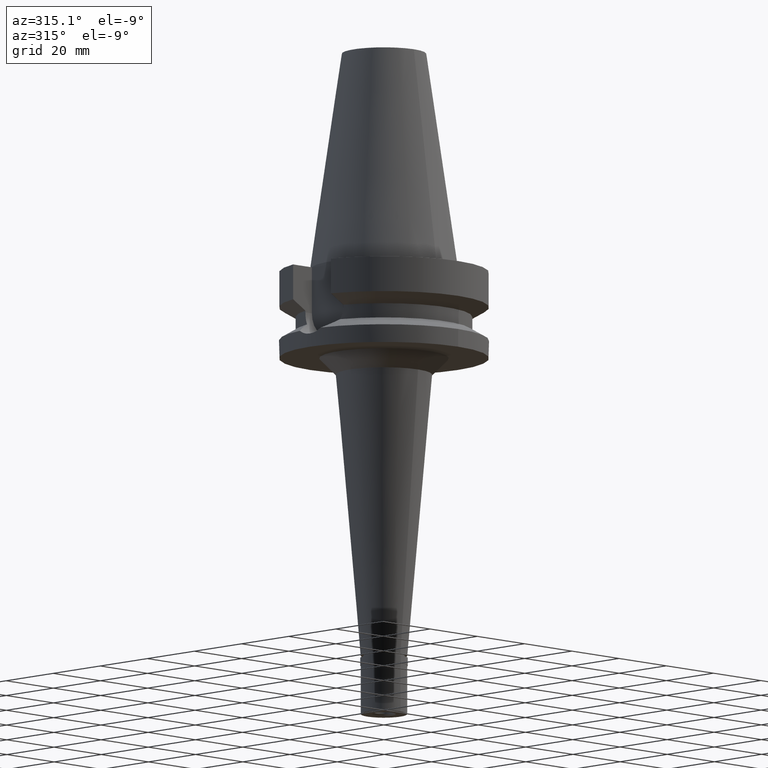
[diagram: clean part render]
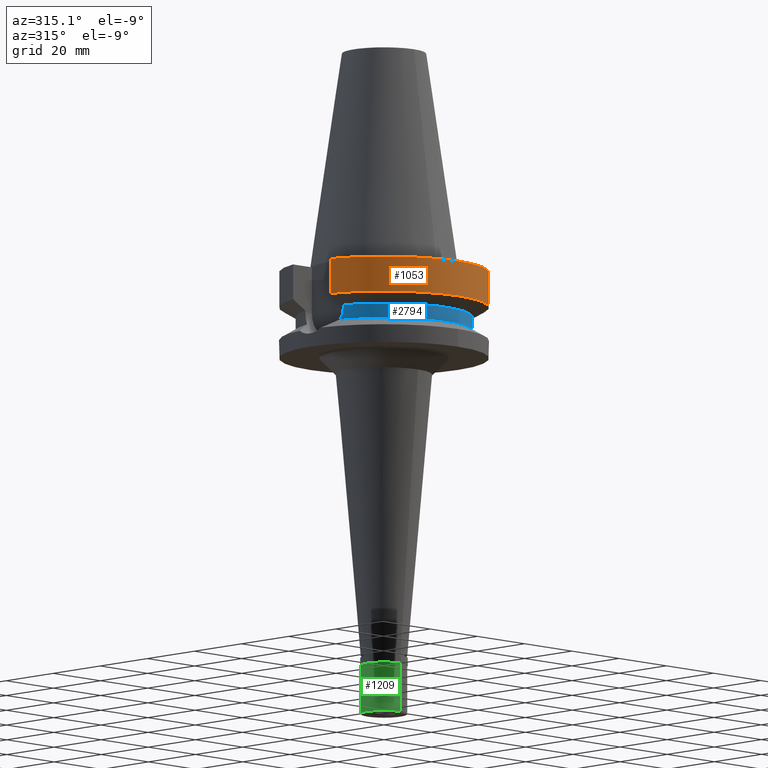
[diagram: same view with three faces highlighted in distinct colors, each labeled with its STEP entity id]
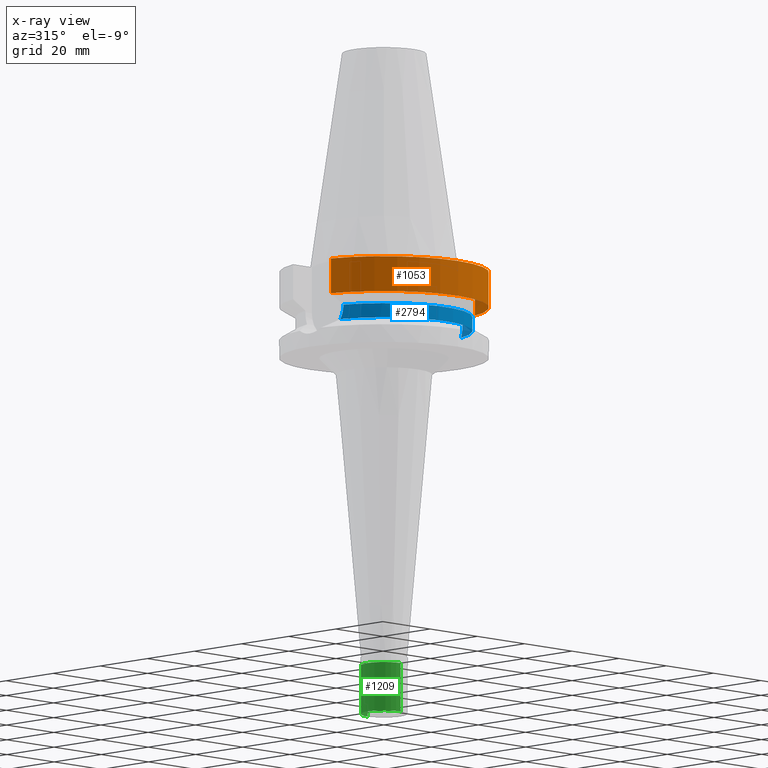
[diagram: x-ray of the same camera — body ghosted, the three highlighted faces saturated]
A machine part, auxiliary view with three faces highlighted in distinct colors.
The next image is the same camera in x-ray (body ghosted, the three faces saturated) — at least one of them is partly hidden behind the body in this view.
Their STEP definitions:

[orange] entity #1053 — the highlighted cylindrical surface (partial cylindrical patch) has radius 31.5 mm, axis along (0, 0, -1).
#32 = CARTESIAN_POINT ( 'NONE',  ( -30.45402291359999936, -8.049999278145000048, -11.56551215426000034 ) ) ;
#77 = AXIS2_PLACEMENT_3D ( 'NONE', #2067, #2307, #1387 ) ;
#214 = EDGE_CURVE ( 'NONE', #295, #789, #863, .T. ) ;
#295 = VERTEX_POINT ( 'NONE', #2447 ) ;
#300 = CARTESIAN_POINT ( 'NONE',  ( 30.45402272279000044, -8.049999999999000622, -11.56550565266999975 ) ) ;
#347 = FACE_OUTER_BOUND ( 'NONE', #1312, .T. ) ;
#514 = DIRECTION ( 'NONE',  ( -1.036721332146017624E-07, -3.922023857780068566E-07, -0.9999999999999177325 ) ) ;
#537 = AXIS2_PLACEMENT_3D ( 'NONE', #1752, #2857, #2655 ) ;
#754 = DIRECTION ( 'NONE',  ( 1.805963320780990496E-08, -6.832178659850962840E-08, 0.9999999999999974465 ) ) ;
#789 = VERTEX_POINT ( 'NONE', #300 ) ;
#863 = CIRCLE ( 'NONE', #1578, 31.50000000000000000 ) ;
#930 = EDGE_CURVE ( 'NONE', #295, #2353, #1880, .T. ) ;
#990 = ORIENTED_EDGE ( 'NONE', *, *, #930, .F. ) ;
#1053 = ADVANCED_FACE ( 'NONE', ( #347 ), #2876, .T. ) ;
#1125 = DIRECTION ( 'NONE',  ( 0.0000000000000000000, 0.0000000000000000000, 1.000000000000000000 ) ) ;
#1312 = EDGE_LOOP ( 'NONE', ( #990, #2818, #1600, #1492 ) ) ;
#1387 = DIRECTION ( 'NONE',  ( 0.0000000000000000000, -1.000000000000000000, 0.0000000000000000000 ) ) ;
#1476 = VECTOR ( 'NONE', #514, 1000.000000000000114 ) ;
#1492 = ORIENTED_EDGE ( 'NONE', *, *, #2511, .T. ) ;
#1509 = CARTESIAN_POINT ( 'NONE',  ( -30.45402272279000044, -8.050000000000000711, -1.000000000000000000 ) ) ;
#1578 = AXIS2_PLACEMENT_3D ( 'NONE', #1804, #1125, #2481 ) ;
#1600 = ORIENTED_EDGE ( 'NONE', *, *, #2251, .F. ) ;
#1644 = LINE ( 'NONE', #2776, #1476 ) ;
#1704 = VERTEX_POINT ( 'NONE', #2692 ) ;
#1752 = CARTESIAN_POINT ( 'NONE',  ( 0.0000000000000000000, 2.145826121465999692E-14, 75.21999999999999886 ) ) ;
#1804 = CARTESIAN_POINT ( 'NONE',  ( 0.0000000000000000000, 1.065333950388000029E-14, -11.56550565266999975 ) ) ;
#1819 = CIRCLE ( 'NONE', #77, 31.50000000000000000 ) ;
#1828 = VECTOR ( 'NONE', #754, 1000.000000000000114 ) ;
#1880 = LINE ( 'NONE', #32, #1828 ) ;
#2067 = CARTESIAN_POINT ( 'NONE',  ( 0.0000000000000000000, 2.145826121465999692E-14, -1.000000000000000000 ) ) ;
#2251 = EDGE_CURVE ( 'NONE', #1704, #789, #1644, .T. ) ;
#2307 = DIRECTION ( 'NONE',  ( 0.0000000000000000000, 0.0000000000000000000, -1.000000000000000000 ) ) ;
#2353 = VERTEX_POINT ( 'NONE', #1509 ) ;
#2447 = CARTESIAN_POINT ( 'NONE',  ( -30.45402291359999936, -8.049999278145000048, -11.56551215426000034 ) ) ;
#2481 = DIRECTION ( 'NONE',  ( 0.0000000000000000000, -1.000000000000000000, 0.0000000000000000000 ) ) ;
#2511 = EDGE_CURVE ( 'NONE', #1704, #2353, #1819, .T. ) ;
#2655 = DIRECTION ( 'NONE',  ( 0.0000000000000000000, -1.000000000000000000, 0.0000000000000000000 ) ) ;
#2692 = CARTESIAN_POINT ( 'NONE',  ( 30.45402272279000044, -8.050000000000000711, -1.000000000000000000 ) ) ;
#2776 = CARTESIAN_POINT ( 'NONE',  ( 30.45402272279000044, -8.050000000000000711, -1.000000000000000000 ) ) ;
#2818 = ORIENTED_EDGE ( 'NONE', *, *, #214, .T. ) ;
#2857 = DIRECTION ( 'NONE',  ( 0.0000000000000000000, 0.0000000000000000000, -1.000000000000000000 ) ) ;
#2876 = CYLINDRICAL_SURFACE ( 'NONE', #537, 31.50000000000000000 ) ;

[blue] entity #2794 — the highlighted cylindrical surface (partial cylindrical patch) has radius 26.5 mm, axis along (0, 0, -1).
#48 = DIRECTION ( 'NONE',  ( 0.0000000000000000000, 0.0000000000000000000, -1.000000000000000000 ) ) ;
#81 = CARTESIAN_POINT ( 'NONE',  ( 0.0000000000000000000, 1.065333950388000029E-14, -14.45225699861000024 ) ) ;
#117 = VERTEX_POINT ( 'NONE', #1479 ) ;
#166 = CARTESIAN_POINT ( 'NONE',  ( 25.27269700110156236, -7.971767412699277244, -16.08147680843515914 ) ) ;
#182 = CARTESIAN_POINT ( 'NONE',  ( 25.25396625246038340, -8.030896711159558166, -15.59378553532194012 ) ) ;
#191 = AXIS2_PLACEMENT_3D ( 'NONE', #606, #407, #211 ) ;
#204 = CARTESIAN_POINT ( 'NONE',  ( 25.24772216364000244, -8.050001586825000999, -14.45224487387000067 ) ) ;
#211 = DIRECTION ( 'NONE',  ( 0.0000000000000000000, -1.000000000000000000, 0.0000000000000000000 ) ) ;
#270 = CARTESIAN_POINT ( 'NONE',  ( 25.53175183775000079, -7.097862220092999941, -18.74774300138999905 ) ) ;
#318 = EDGE_CURVE ( 'NONE', #117, #1577, #1273, .T. ) ;
#379 = EDGE_CURVE ( 'NONE', #1874, #117, #2929, .T. ) ;
#397 = ORIENTED_EDGE ( 'NONE', *, *, #899, .T. ) ;
#401 = CARTESIAN_POINT ( 'NONE',  ( 25.28050147970205686, -7.946982733722315118, -16.24437200643345136 ) ) ;
#407 = DIRECTION ( 'NONE',  ( 0.0000000000000000000, 0.0000000000000000000, -1.000000000000000000 ) ) ;
#579 = AXIS2_PLACEMENT_3D ( 'NONE', #1793, #2935, #2483 ) ;
#606 = CARTESIAN_POINT ( 'NONE',  ( 0.0000000000000000000, 2.145826121465999692E-14, 75.21999999999999886 ) ) ;
#627 = DIRECTION ( 'NONE',  ( -2.936638260136918910E-06, 9.210369565768746321E-06, 0.9999999999532727113 ) ) ;
#629 = CIRCLE ( 'NONE', #2144, 26.50000000000000711 ) ;
#666 = VERTEX_POINT ( 'NONE', #1420 ) ;
#701 = CARTESIAN_POINT ( 'NONE',  ( -25.32549379169775960, -7.802110623111747856, -16.93240720981668801 ) ) ;
#790 = ORIENTED_EDGE ( 'NONE', *, *, #1087, .F. ) ;
#847 = CARTESIAN_POINT ( 'NONE',  ( -25.24772266958000344, -8.050000000000000711, -14.94999999999999929 ) ) ;
#866 = CARTESIAN_POINT ( 'NONE',  ( 25.53175183775000079, -7.097862220092999941, -18.74774300138999905 ) ) ;
#874 = CARTESIAN_POINT ( 'NONE',  ( -25.24772266958000344, -8.049999999999981171, -15.58995119535710394 ) ) ;
#881 = CARTESIAN_POINT ( 'NONE',  ( 25.24772266958000344, -8.050000000000000711, -15.27000344023661249 ) ) ;
#887 = FACE_OUTER_BOUND ( 'NONE', #1994, .T. ) ;
#888 = CARTESIAN_POINT ( 'NONE',  ( -25.24772266958000344, -8.050000000000000711, -14.94999999999999929 ) ) ;
#899 = EDGE_CURVE ( 'NONE', #1874, #2367, #629, .T. ) ;
#988 = DIRECTION ( 'NONE',  ( 0.9527442516822307583, -0.3037735849057093818, 0.0000000000000000000 ) ) ;
#1060 = CARTESIAN_POINT ( 'NONE',  ( -25.24772413117000269, -8.049995415925998543, -14.45229202691999859 ) ) ;
#1084 = CARTESIAN_POINT ( 'NONE',  ( 25.32122245610152333, -7.815962707354765726, -16.87706809355932691 ) ) ;
#1087 = EDGE_CURVE ( 'NONE', #666, #2438, #2550, .T. ) ;
#1094 = CARTESIAN_POINT ( 'NONE',  ( -25.37572073963947261, -7.637749019364103553, -17.49807125654118067 ) ) ;
#1128 = CARTESIAN_POINT ( 'NONE',  ( -25.53175183775000079, -7.097862220092999941, -18.74774300138999905 ) ) ;
#1273 = B_SPLINE_CURVE_WITH_KNOTS ( 'NONE', 3,
 ( #2239, #881, #182, #166, #401, #2460, #1551, #1364, #2226, #1565, #1084, #1349, #1787, #866 ),
 .UNSPECIFIED., .F., .F.,
 ( 4, 2, 2, 1, 1, 2, 2, 4 ),
 ( 0.0000000000000000000, 0.2500000000000002220, 0.3750000000000002776, 0.4375000000000002776, 0.4687500000000003331, 0.4843750000000004441, 0.5000000000000004441, 1.000000000000000000 ),
 .UNSPECIFIED. ) ;
#1349 = CARTESIAN_POINT ( 'NONE',  ( 25.36818832152585657, -7.663695285298394388, -17.48840541843396679 ) ) ;
#1358 = CARTESIAN_POINT ( 'NONE',  ( -25.32418399504418360, -7.806358676375241501, -16.91563029433266152 ) ) ;
#1361 = CARTESIAN_POINT ( 'NONE',  ( 25.24772266958000344, -8.050000000000000711, -14.45225699861000024 ) ) ;
#1364 = CARTESIAN_POINT ( 'NONE',  ( 25.31206084004276846, -7.845614529398909021, -16.75329855851902749 ) ) ;
#1383 = CARTESIAN_POINT ( 'NONE',  ( -25.32843481438663247, -7.792567015959785515, -16.96959595527966513 ) ) ;
#1420 = CARTESIAN_POINT ( 'NONE',  ( -25.53175183775000079, -7.097862220092999941, -18.74774300138999905 ) ) ;
#1479 = CARTESIAN_POINT ( 'NONE',  ( 25.24772266958000344, -8.050000000000000711, -14.94999999999999929 ) ) ;
#1551 = CARTESIAN_POINT ( 'NONE',  ( 25.30215890781841281, -7.877570599496804604, -16.61088255778438949 ) ) ;
#1555 = ORIENTED_EDGE ( 'NONE', *, *, #1692, .T. ) ;
#1565 = CARTESIAN_POINT ( 'NONE',  ( 25.31954826170011330, -7.821386849067300417, -16.85495274079918104 ) ) ;
#1577 = VERTEX_POINT ( 'NONE', #270 ) ;
#1617 = CARTESIAN_POINT ( 'NONE',  ( -25.39163789193598930, -7.584844707919025097, -17.65187641390370388 ) ) ;
#1668 = ORIENTED_EDGE ( 'NONE', *, *, #2368, .F. ) ;
#1692 = EDGE_CURVE ( 'NONE', #666, #1577, #2327, .T. ) ;
#1767 = ORIENTED_EDGE ( 'NONE', *, *, #318, .F. ) ;
#1775 = VECTOR ( 'NONE', #2446, 999.9999999999998863 ) ;
#1784 = CARTESIAN_POINT ( 'NONE',  ( -25.24772266958000344, -8.050000000000000711, -14.94999999999999929 ) ) ;
#1787 = CARTESIAN_POINT ( 'NONE',  ( 25.43789037939429676, -7.435491690445002355, -18.11672414067734138 ) ) ;
#1793 = CARTESIAN_POINT ( 'NONE',  ( 0.0000000000000000000, 0.0000000000000000000, -18.74774300138999905 ) ) ;
#1796 = CARTESIAN_POINT ( 'NONE',  ( -25.34387143298875245, -7.742373311419552095, -17.15653003779071284 ) ) ;
#1874 = VERTEX_POINT ( 'NONE', #1361 ) ;
#1903 = VECTOR ( 'NONE', #627, 999.9999999999998863 ) ;
#1994 = EDGE_LOOP ( 'NONE', ( #790, #1555, #1767, #2119, #397, #1668 ) ) ;
#2009 = CARTESIAN_POINT ( 'NONE',  ( -25.33291713924164767, -7.778013934258678042, -17.02547645187124559 ) ) ;
#2119 = ORIENTED_EDGE ( 'NONE', *, *, #379, .F. ) ;
#2144 = AXIS2_PLACEMENT_3D ( 'NONE', #81, #48, #988 ) ;
#2226 = CARTESIAN_POINT ( 'NONE',  ( 25.31652402624243337, -7.831177078178453321, -16.81429685341515778 ) ) ;
#2239 = CARTESIAN_POINT ( 'NONE',  ( 25.24772266958000344, -8.050000000000000711, -14.94999999999999929 ) ) ;
#2327 = CIRCLE ( 'NONE', #579, 26.49999999999998224 ) ;
#2367 = VERTEX_POINT ( 'NONE', #1060 ) ;
#2368 = EDGE_CURVE ( 'NONE', #2438, #2367, #2894, .T. ) ;
#2420 = CYLINDRICAL_SURFACE ( 'NONE', #191, 26.50000000000000000 ) ;
#2438 = VERTEX_POINT ( 'NONE', #1784 ) ;
#2446 = DIRECTION ( 'NONE',  ( 1.016451457034001931E-06, 3.187962647734004381E-06, -0.9999999999944019224 ) ) ;
#2460 = CARTESIAN_POINT ( 'NONE',  ( 25.29454954118293841, -7.902007388337085381, -16.48871296866759195 ) ) ;
#2483 = DIRECTION ( 'NONE',  ( -0.9634623335000935818, -0.2678438573619981722, 0.0000000000000000000 ) ) ;
#2550 = B_SPLINE_CURVE_WITH_KNOTS ( 'NONE', 3,
 ( #1128, #2967, #2937, #1617, #1094, #2750, #1796, #2009, #1383, #701, #1358, #2922, #874, #888 ),
 .UNSPECIFIED., .F., .F.,
 ( 4, 2, 2, 1, 1, 2, 2, 4 ),
 ( 0.0000000000000000000, 0.2499999999999948375, 0.3749999999999909517, 0.4374999999999888978, 0.4687499999999878431, 0.4843749999999886757, 0.4999999999999895084, 1.000000000000000000 ),
 .UNSPECIFIED. ) ;
#2750 = CARTESIAN_POINT ( 'NONE',  ( -25.35411031748981614, -7.708870715569698717, -17.26994754109524877 ) ) ;
#2794 = ADVANCED_FACE ( 'NONE', ( #887 ), #2420, .T. ) ;
#2894 = LINE ( 'NONE', #847, #1903 ) ;
#2922 = CARTESIAN_POINT ( 'NONE',  ( -25.27268963299686888, -7.973299854736771941, -16.24527810189547594 ) ) ;
#2929 = LINE ( 'NONE', #204, #1775 ) ;
#2935 = DIRECTION ( 'NONE',  ( 0.0000000000000000000, 0.0000000000000000000, 1.000000000000000000 ) ) ;
#2937 = CARTESIAN_POINT ( 'NONE',  ( -25.44391996141583334, -7.408267900027823316, -18.11703146786447860 ) ) ;
#2967 = CARTESIAN_POINT ( 'NONE',  ( -25.48481549118941558, -7.266697161580596642, -18.43219580607081554 ) ) ;

[green] entity #1209 — the highlighted cylindrical surface (edge-blend (fillet) strip) has radius 7 mm, axis along (0, 0, 1).
#3 = EDGE_CURVE ( 'NONE', #1528, #1710, #2288, .T. ) ;
#96 = CARTESIAN_POINT ( 'NONE',  ( 0.0000000000000000000, 7.000000000000000000, -17.00000000000000000 ) ) ;
#244 = ORIENTED_EDGE ( 'NONE', *, *, #2321, .T. ) ;
#316 = LINE ( 'NONE', #2822, #1185 ) ;
#380 = CARTESIAN_POINT ( 'NONE',  ( 0.0000000000000000000, 7.000000000000000000, -2.299999999999999822 ) ) ;
#383 = CIRCLE ( 'NONE', #1630, 7.000000000000000000 ) ;
#519 = DIRECTION ( 'NONE',  ( 0.0000000000000000000, 0.0000000000000000000, 1.000000000000000000 ) ) ;
#543 = VERTEX_POINT ( 'NONE', #2882 ) ;
#682 = EDGE_CURVE ( 'NONE', #767, #543, #383, .T. ) ;
#767 = VERTEX_POINT ( 'NONE', #1892 ) ;
#770 = DIRECTION ( 'NONE',  ( 0.0000000000000000000, 1.000000000000000000, 0.0000000000000000000 ) ) ;
#1185 = VECTOR ( 'NONE', #2604, 1000.000000000000000 ) ;
#1209 = ADVANCED_FACE ( 'NONE', ( #1807 ), #2713, .T. ) ;
#1385 = VECTOR ( 'NONE', #1742, 1000.000000000000000 ) ;
#1528 = VERTEX_POINT ( 'NONE', #96 ) ;
#1576 = DIRECTION ( 'NONE',  ( 0.0000000000000000000, 0.0000000000000000000, 1.000000000000000000 ) ) ;
#1593 = DIRECTION ( 'NONE',  ( 0.0000000000000000000, 1.000000000000000000, 0.0000000000000000000 ) ) ;
#1630 = AXIS2_PLACEMENT_3D ( 'NONE', #2100, #2792, #1656 ) ;
#1656 = DIRECTION ( 'NONE',  ( 0.0000000000000000000, -1.000000000000000000, 0.0000000000000000000 ) ) ;
#1710 = VERTEX_POINT ( 'NONE', #2322 ) ;
#1742 = DIRECTION ( 'NONE',  ( 0.0000000000000000000, 0.0000000000000000000, -1.000000000000000000 ) ) ;
#1807 = FACE_OUTER_BOUND ( 'NONE', #1936, .T. ) ;
#1822 = CARTESIAN_POINT ( 'NONE',  ( 0.0000000000000000000, 0.0000000000000000000, -17.85000000000000142 ) ) ;
#1892 = CARTESIAN_POINT ( 'NONE',  ( 0.0000000000000000000, -7.000000000000000000, -2.299999999999999822 ) ) ;
#1936 = EDGE_LOOP ( 'NONE', ( #2891, #2468, #2952, #244 ) ) ;
#2100 = CARTESIAN_POINT ( 'NONE',  ( 0.0000000000000000000, 0.0000000000000000000, -2.299999999999999822 ) ) ;
#2157 = LINE ( 'NONE', #380, #1385 ) ;
#2189 = EDGE_CURVE ( 'NONE', #767, #1710, #316, .T. ) ;
#2288 = CIRCLE ( 'NONE', #2725, 7.000000000000000000 ) ;
#2321 = EDGE_CURVE ( 'NONE', #543, #1528, #2157, .T. ) ;
#2322 = CARTESIAN_POINT ( 'NONE',  ( 0.0000000000000000000, -7.000000000000000000, -17.00000000000000000 ) ) ;
#2468 = ORIENTED_EDGE ( 'NONE', *, *, #2189, .F. ) ;
#2604 = DIRECTION ( 'NONE',  ( 0.0000000000000000000, 0.0000000000000000000, -1.000000000000000000 ) ) ;
#2713 = CYLINDRICAL_SURFACE ( 'NONE', #2968, 7.000000000000000000 ) ;
#2725 = AXIS2_PLACEMENT_3D ( 'NONE', #2784, #519, #770 ) ;
#2784 = CARTESIAN_POINT ( 'NONE',  ( 0.0000000000000000000, 0.0000000000000000000, -17.00000000000000000 ) ) ;
#2792 = DIRECTION ( 'NONE',  ( 0.0000000000000000000, 0.0000000000000000000, -1.000000000000000000 ) ) ;
#2822 = CARTESIAN_POINT ( 'NONE',  ( 0.0000000000000000000, -7.000000000000000000, -2.299999999999999822 ) ) ;
#2882 = CARTESIAN_POINT ( 'NONE',  ( 0.0000000000000000000, 7.000000000000000000, -2.299999999999999822 ) ) ;
#2891 = ORIENTED_EDGE ( 'NONE', *, *, #3, .T. ) ;
#2952 = ORIENTED_EDGE ( 'NONE', *, *, #682, .T. ) ;
#2968 = AXIS2_PLACEMENT_3D ( 'NONE', #1822, #1576, #1593 ) ;